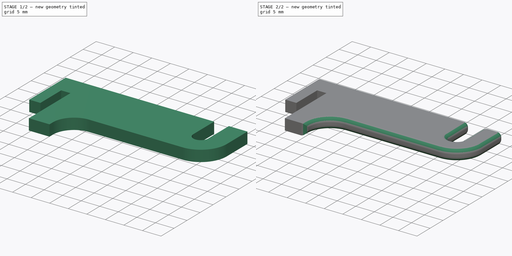
[diagram: build sequence overview — one tinted view per stage of 2, left to right]
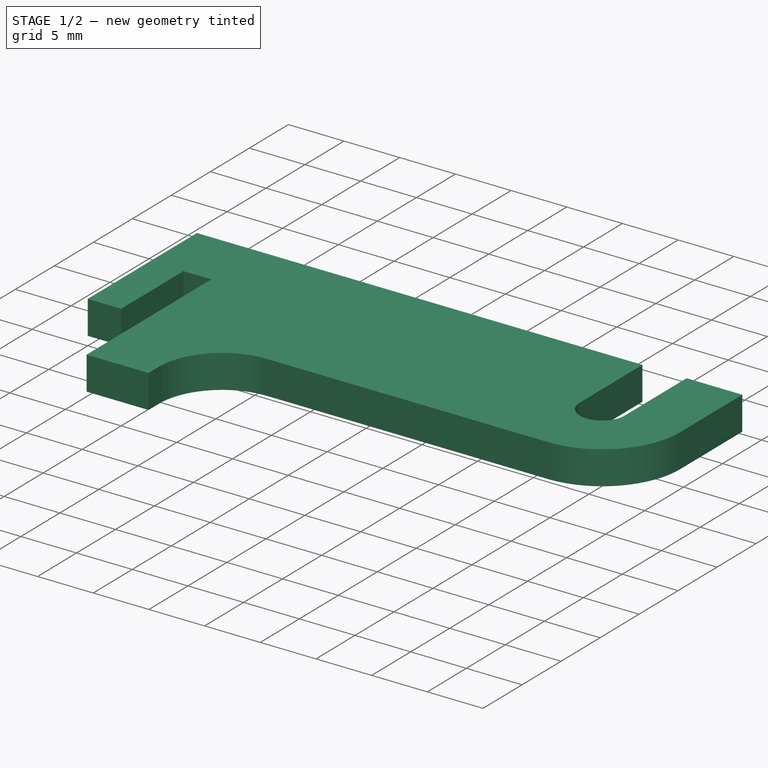
[diagram: stage 1 of 2 — iso view after this stage's code; geometry added in this stage tinted green]
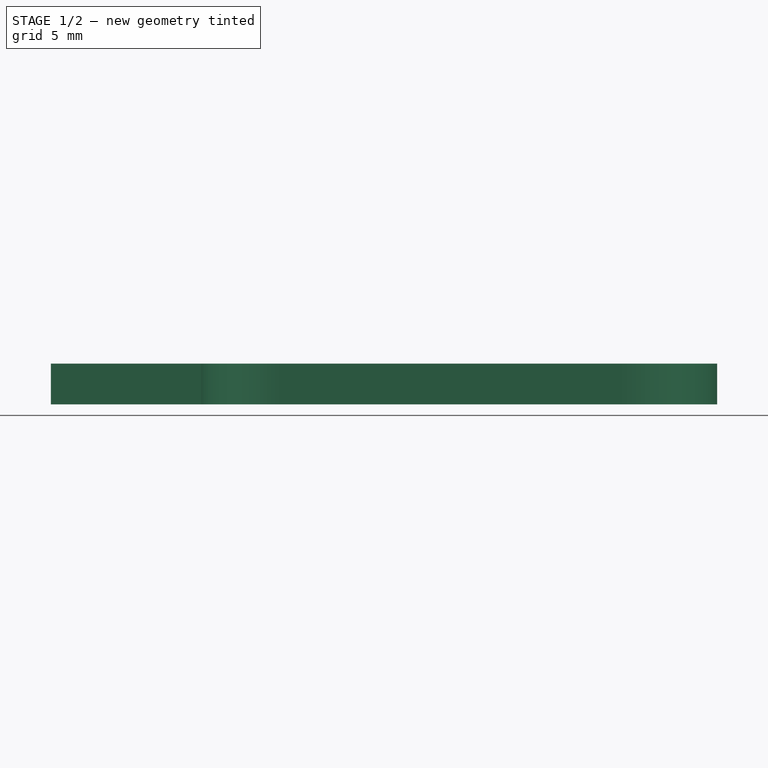
[diagram: stage 1 of 2 — front view after this stage's code; geometry added in this stage tinted green]
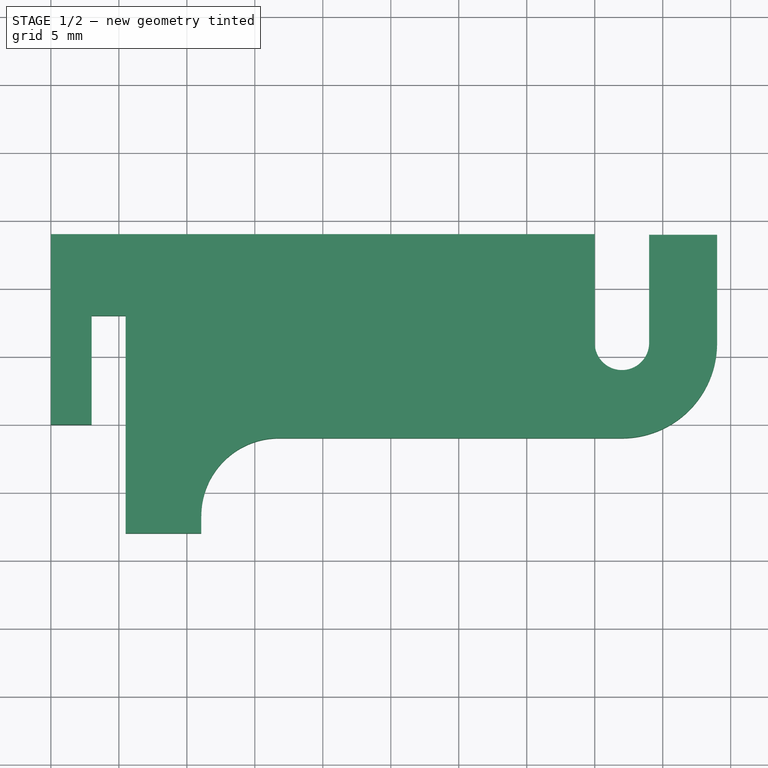
[diagram: stage 1 of 2 — top view after this stage's code; geometry added in this stage tinted green]
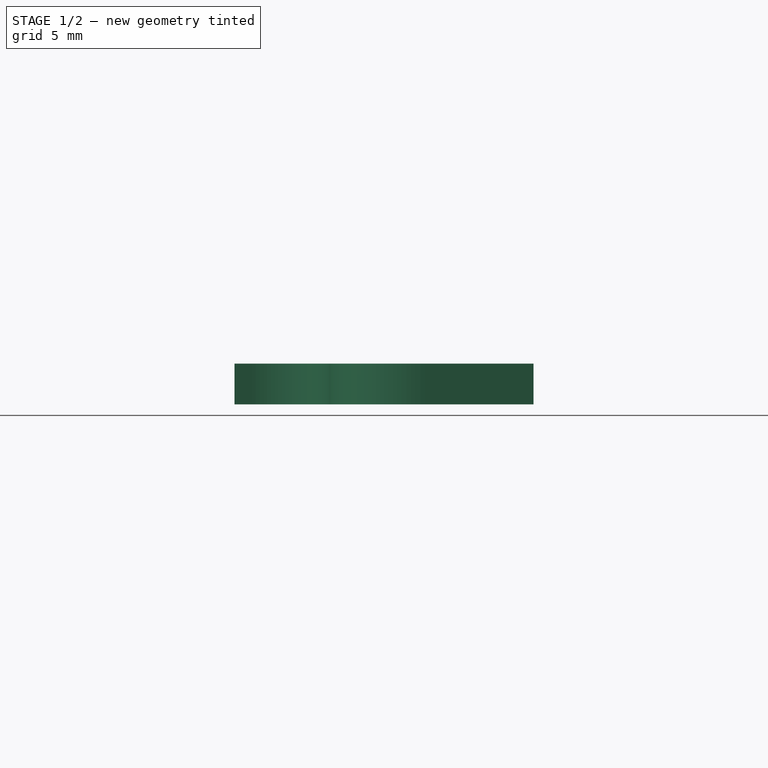
[diagram: stage 1 of 2 — right view after this stage's code; geometry added in this stage tinted green]
FCSTD DOCUMENT  (FreeCAD 0.16RUnknown)
Label: cubicle_hook
License: All rights reserved
LicenseURL: http://en.wikipedia.org/wiki/All_rights_reserved
objects: Sketcher::SketchObject×1, PartDesign::Pad×1, PartDesign::Fillet×1
note: 4 computed .brp shape members not serialized (recipe doc carries the construction recipe); baked Part::Feature solids carry a one-line shape summary decoded from their .brp

FEATURE [Sketcher::SketchObject] Sketch
  sketch-geometry (18):
    g0: LineSegment StartX=0 StartY=0 StartZ=0 EndX=0 EndY=14 EndZ=0
    g1: LineSegment StartX=0 StartY=0 StartZ=0 EndX=3 EndY=0 EndZ=0
    g2: LineSegment StartX=3 StartY=0 StartZ=0 EndX=3 EndY=8 EndZ=0
    g3: LineSegment StartX=3 StartY=8 StartZ=0 EndX=5.5 EndY=8 EndZ=0
    g4: LineSegment StartX=5.5 StartY=8 StartZ=0 EndX=5.5 EndY=-8 EndZ=0
    g5: LineSegment StartX=5.5 StartY=-8 StartZ=0 EndX=11.0625 EndY=-8 EndZ=0
    g6: ArcOfCircle CenterX=16.7695 CenterY=-6.70698 CenterZ=0 NormalX=0 NormalY=0 NormalZ=1 Radius=5.70698 StartAngle=1.5708 EndAngle=3.14159
    g7: LineSegment StartX=0 StartY=14 StartZ=0 EndX=40 EndY=14 EndZ=0
    g8: LineSegment StartX=40 StartY=14 StartZ=0 EndX=40 EndY=6 EndZ=0
    g9: ArcOfCircle CenterX=42 CenterY=6 CenterZ=0 NormalX=0 NormalY=0 NormalZ=1 Radius=2 StartAngle=3.14159 EndAngle=6.28319
    g10: LineSegment StartX=16.7695 StartY=-1 StartZ=0 EndX=42 EndY=-1 EndZ=0
    g11: ArcOfCircle CenterX=42 CenterY=6 CenterZ=0 NormalX=0 NormalY=0 NormalZ=1 Radius=7 StartAngle=4.71239 EndAngle=6.28319
    g12: LineSegment StartX=44 StartY=6 StartZ=0 EndX=44 EndY=13.954 EndZ=0
    g13: LineSegment StartX=44 StartY=13.954 StartZ=0 EndX=49 EndY=13.954 EndZ=0
    g14: LineSegment StartX=49 StartY=13.954 StartZ=0 EndX=49 EndY=6 EndZ=0
    g15: LineSegment [constr] StartX=42 StartY=6 StartZ=0 EndX=42 EndY=-1 EndZ=0
    g16: GeomPoint [constr] X=42 Y=4 Z=0
    g17: LineSegment StartX=11.0625 StartY=-6.70698 StartZ=0 EndX=11.0625 EndY=-8 EndZ=0
  constraints (51):
    c: Coincident(g0,g-1)
    c: PointOnObject(g0,g-2)
    c: Coincident(g1,g-1)
    c: PointOnObject(g1,g-1)
    c: Coincident(g2,g1)
    c: Vertical(g2)
    c: Coincident(g3,g2)
    c: Horizontal(g3)
    c: Coincident(g4,g3)
    c: Vertical(g4)
    c: Coincident(g5,g4)
    c: Horizontal(g5)
    c: Angle(g6) = 1.5708
    c: Coincident(g7,g0)
    c: Horizontal(g7)
    c: Coincident(g8,g7)
    c: Vertical(g8)
    c: Coincident(g9,g8)
    c: Angle(g9) = 3.14159
    c: Tangent(g9,g8)
    c: DistanceY(g-1,g0) = 14
    c: DistanceX(g-1,g1) = 3
    c: DistanceY(g1,g2) = 8
    c: DistanceX(g2,g3) = 2.5
    c: DistanceX(g0,g7) = 40
    c: Horizontal(g10)
    c: Coincident(g11,g9)
    c: Coincident(g11,g10)
    c: Coincident(g12,g9)
    c: Vertical(g12)
    c: Coincident(g13,g12)
    c: Horizontal(g13)
    c: Coincident(g14,g13)
    c: Coincident(g14,g11)
    c: Vertical(g14)
    c: Angle(g11) = 1.5708
    c: DistanceX(g7,g12) = 4
    c: DistanceX(g12,g13) = 5
    c: Tangent(g10,g11)
    c: Coincident(g15,g9)
    c: Coincident(g15,g10)
    c: Vertical(g15)
    c: PointOnObject(g16,g15)
    c: PointOnObject(g16,g9)
    c: Coincident(g6,g10)
    c: Tangent(g6,g10)
    c: DistanceY(g16,g7) = 10
    c: Coincident(g17,g6)
    c: Coincident(g17,g5)
    c: Vertical(g17)
    c: DistanceY(g4,g3) = 16
FEATURE [PartDesign::Pad] Pad
  Length = 3
  Length2 = 100
  Sketch = -> Sketch
  Type = 0
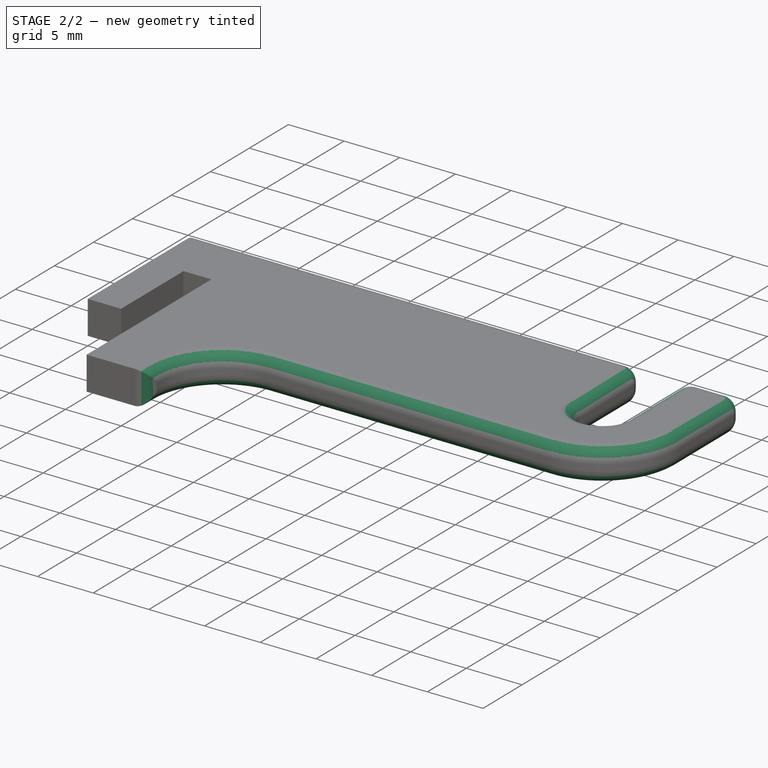
[diagram: stage 2 of 2 — iso view after this stage's code; geometry added in this stage tinted green]
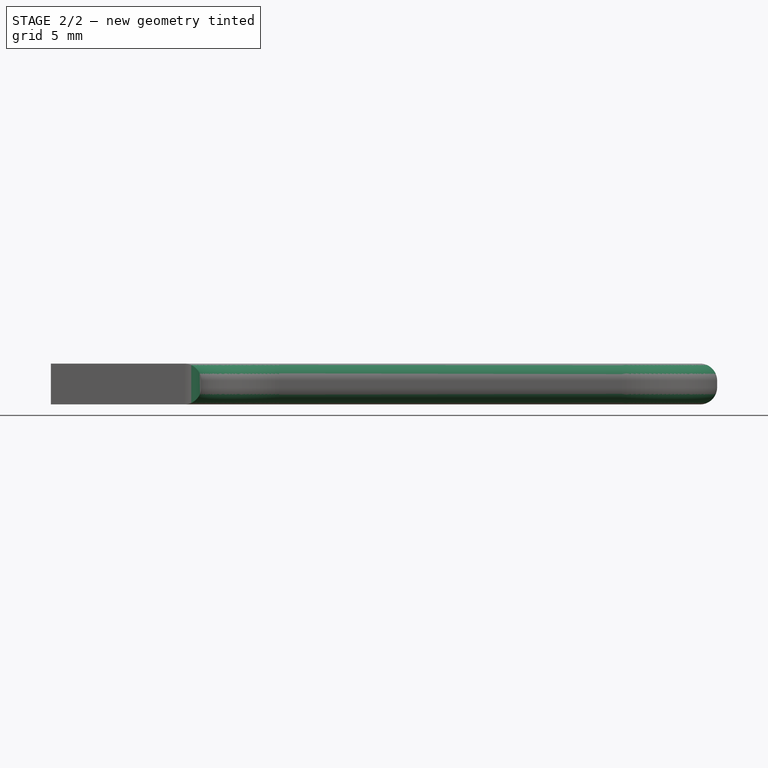
[diagram: stage 2 of 2 — front view after this stage's code; geometry added in this stage tinted green]
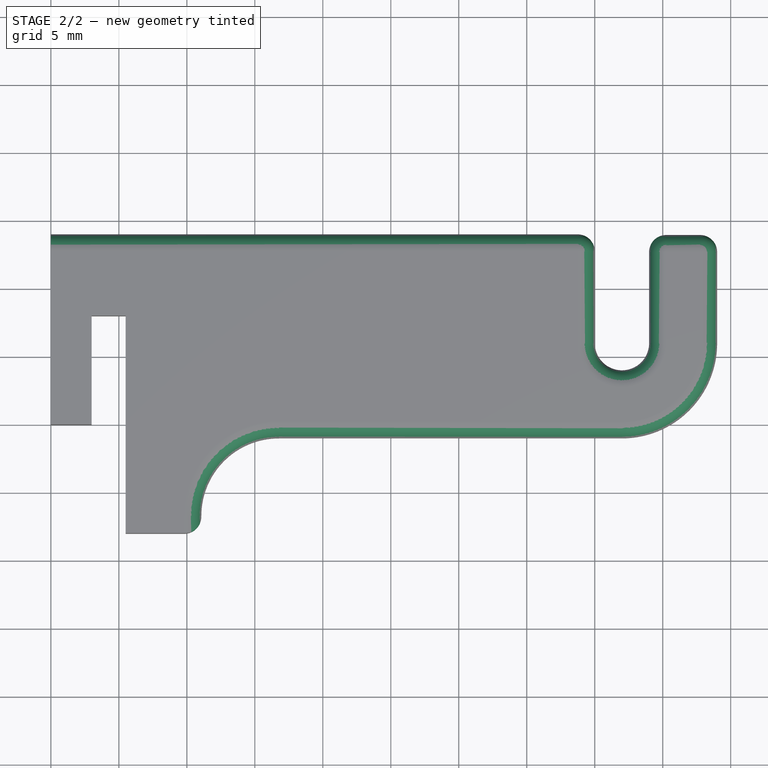
[diagram: stage 2 of 2 — top view after this stage's code; geometry added in this stage tinted green]
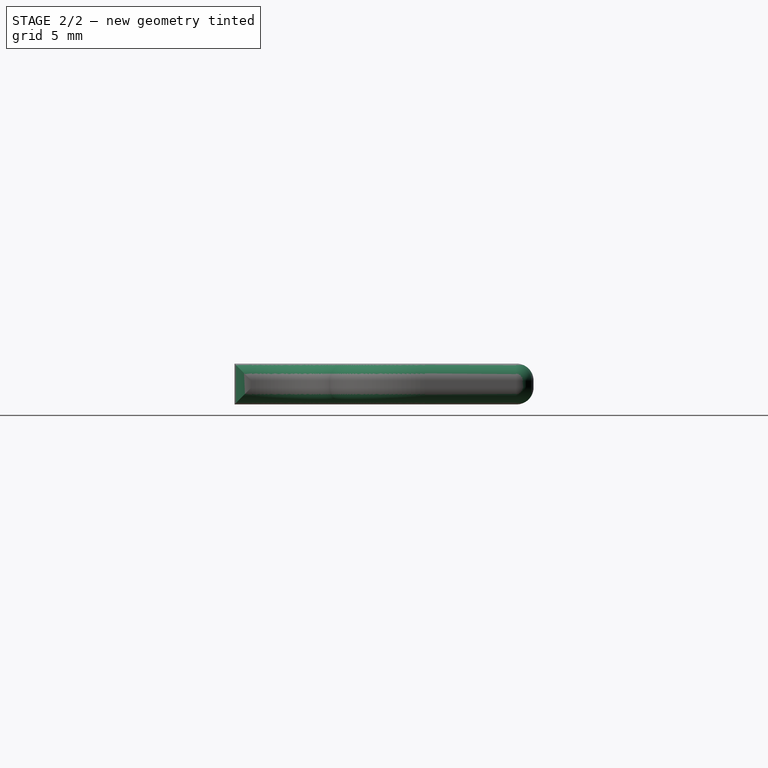
[diagram: stage 2 of 2 — right view after this stage's code; geometry added in this stage tinted green]
FEATURE [PartDesign::Fillet] Fillet
  Base = -> Pad [Edge28,Edge27,Edge26,Edge30,Edge31,Edge33,Edge34,Edge35,Edge36,Edge37,Edge38,Edge39,Edge40,Edge42,Edge43,Edge45,Edge46,Edge47,Edge48,Edge3,Edge4,Edge5,Edge6,Edge7]
  Radius = 1.25
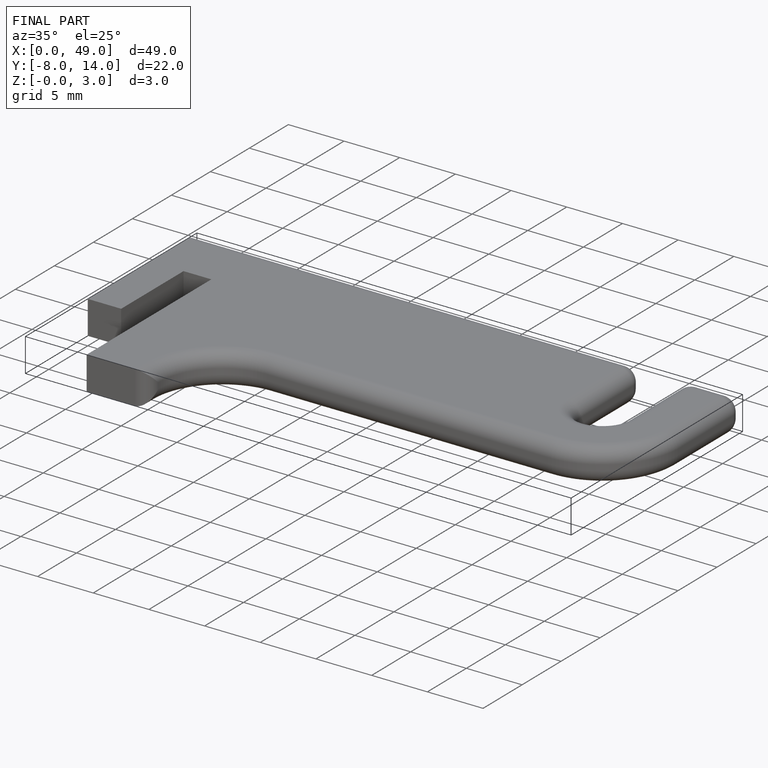
[diagram: finished part — iso view with bounding-box wireframe]
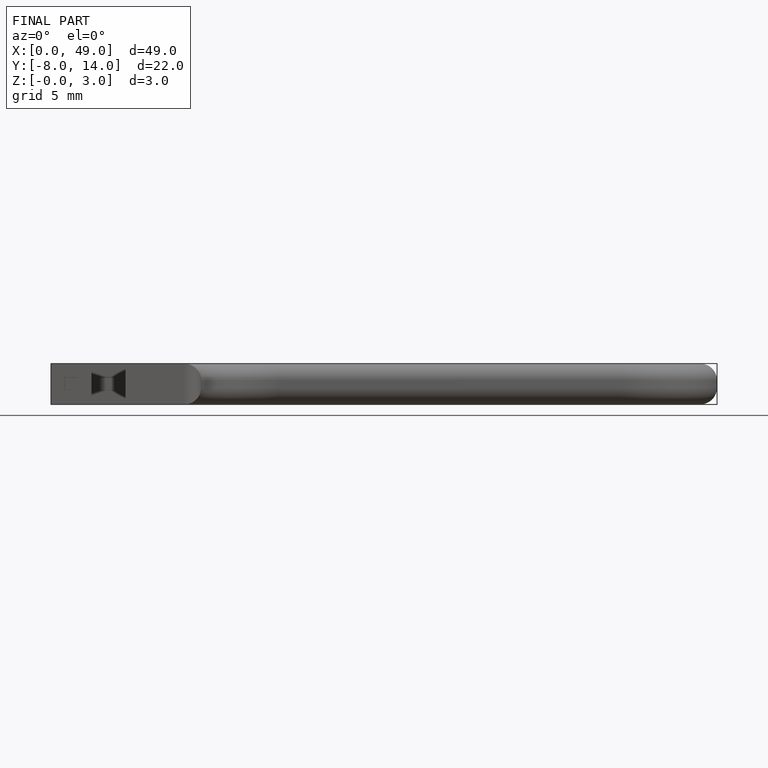
[diagram: finished part — front view with bounding-box wireframe]
